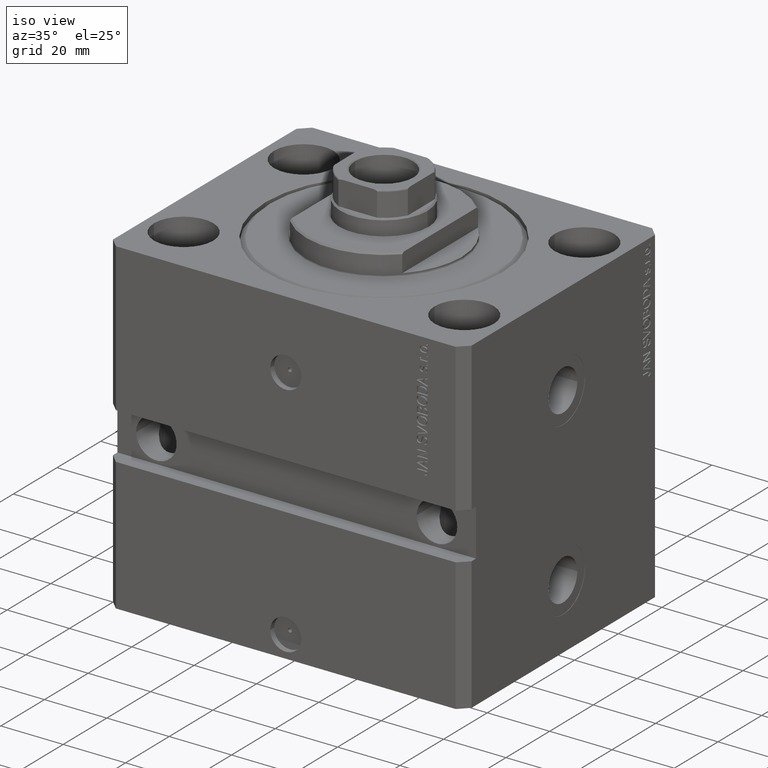
[diagram: clean part render]
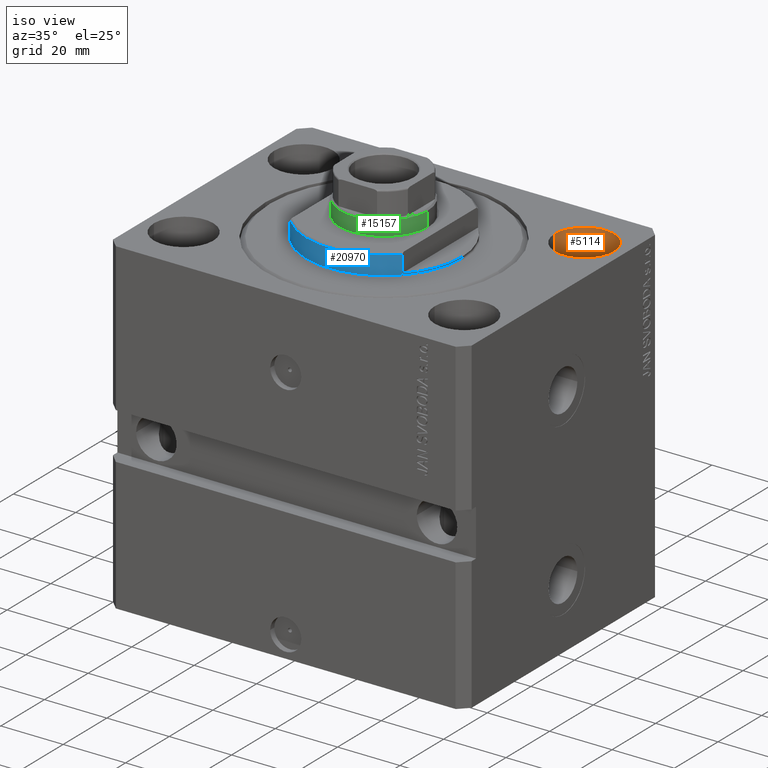
[diagram: same view with three faces highlighted in distinct colors, each labeled with its STEP entity id]
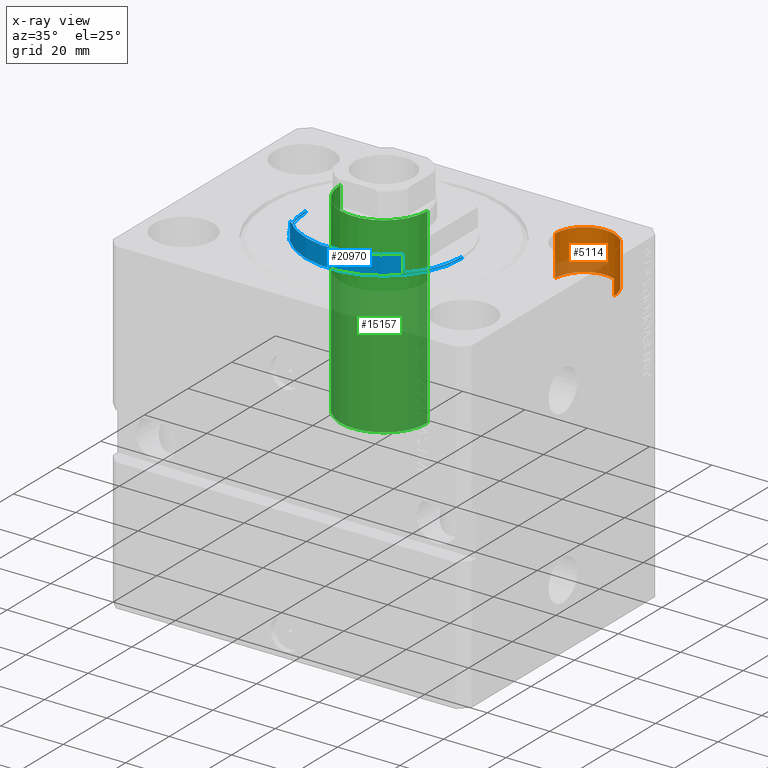
[diagram: x-ray of the same camera — body ghosted, the three highlighted faces saturated]
A machine part, iso view with three faces highlighted in distinct colors.
The next image is the same camera in x-ray (body ghosted, the three faces saturated) — at least one of them is partly hidden behind the body in this view.
Their STEP definitions:

[orange] entity #5114 — the highlighted cylindrical surface (edge-blend (fillet) strip) has radius 9.5 mm, axis along (0, 0, 1).
#1575 = CARTESIAN_POINT ( 'NONE',  ( 35.50000000000000000, 27.50000000000001776, 0.000000000000000000 ) ) ;
#2513 = EDGE_CURVE ( 'NONE', #15507, #37376, #39041, .T. ) ;
#5114 = ADVANCED_FACE ( 'NONE', ( #20858 ), #31531, .F. ) ;
#5474 = AXIS2_PLACEMENT_3D ( 'NONE', #42147, #35186, #14034 ) ;
#6503 = DIRECTION ( 'NONE',  ( -0.000000000000000000, -0.000000000000000000, 1.000000000000000000 ) ) ;
#6527 = VECTOR ( 'NONE', #6503, 1000.000000000000000 ) ;
#7341 = DIRECTION ( 'NONE',  ( -0.000000000000000000, -0.000000000000000000, 1.000000000000000000 ) ) ;
#13011 = DIRECTION ( 'NONE',  ( -0.000000000000000000, -0.000000000000000000, 1.000000000000000000 ) ) ;
#13107 = DIRECTION ( 'NONE',  ( 0.000000000000000000, 0.000000000000000000, 1.000000000000000000 ) ) ;
#14034 = DIRECTION ( 'NONE',  ( 1.000000000000000000, 0.000000000000000000, 0.000000000000000000 ) ) ;
#14112 = AXIS2_PLACEMENT_3D ( 'NONE', #16374, #13107, #38604 ) ;
#15507 = VERTEX_POINT ( 'NONE', #21456 ) ;
#16374 = CARTESIAN_POINT ( 'NONE',  ( 45.00000000000000000, 27.50000000000001776, 0.000000000000000000 ) ) ;
#16433 = VERTEX_POINT ( 'NONE', #24515 ) ;
#16744 = LINE ( 'NONE', #45297, #22772 ) ;
#17902 = EDGE_CURVE ( 'NONE', #16433, #30636, #16744, .T. ) ;
#18497 = AXIS2_PLACEMENT_3D ( 'NONE', #42211, #7341, #35482 ) ;
#20858 = FACE_OUTER_BOUND ( 'NONE', #24588, .T. ) ;
#21456 = CARTESIAN_POINT ( 'NONE',  ( 35.50000000000000000, 27.50000000000001776, -13.00000000000000000 ) ) ;
#22772 = VECTOR ( 'NONE', #13011, 1000.000000000000000 ) ;
#23860 = ORIENTED_EDGE ( 'NONE', *, *, #17902, .T. ) ;
#23967 = CARTESIAN_POINT ( 'NONE',  ( 35.50000000000000000, 27.50000000000001776, -13.00000000000000000 ) ) ;
#24289 = ORIENTED_EDGE ( 'NONE', *, *, #44002, .F. ) ;
#24515 = CARTESIAN_POINT ( 'NONE',  ( 54.50000000000000000, 27.50000000000001776, -13.00000000000000000 ) ) ;
#24588 = EDGE_LOOP ( 'NONE', ( #27254, #24289, #23860, #42805 ) ) ;
#24817 = CIRCLE ( 'NONE', #5474, 9.500000000000001776 ) ;
#27254 = ORIENTED_EDGE ( 'NONE', *, *, #2513, .F. ) ;
#30636 = VERTEX_POINT ( 'NONE', #30646 ) ;
#30646 = CARTESIAN_POINT ( 'NONE',  ( 54.50000000000000000, 27.50000000000001776, 0.000000000000000000 ) ) ;
#31211 = EDGE_CURVE ( 'NONE', #30636, #37376, #45253, .T. ) ;
#31531 = CYLINDRICAL_SURFACE ( 'NONE', #18497, 9.500000000000001776 ) ;
#35186 = DIRECTION ( 'NONE',  ( 0.000000000000000000, 0.000000000000000000, 1.000000000000000000 ) ) ;
#35482 = DIRECTION ( 'NONE',  ( 1.000000000000000000, 0.000000000000000000, 0.000000000000000000 ) ) ;
#37376 = VERTEX_POINT ( 'NONE', #1575 ) ;
#38604 = DIRECTION ( 'NONE',  ( 1.000000000000000000, 0.000000000000000000, 0.000000000000000000 ) ) ;
#39041 = LINE ( 'NONE', #23967, #6527 ) ;
#42147 = CARTESIAN_POINT ( 'NONE',  ( 45.00000000000000000, 27.50000000000001776, -13.00000000000000000 ) ) ;
#42211 = CARTESIAN_POINT ( 'NONE',  ( 45.00000000000000000, 27.50000000000001776, -13.00000000000000000 ) ) ;
#42805 = ORIENTED_EDGE ( 'NONE', *, *, #31211, .T. ) ;
#44002 = EDGE_CURVE ( 'NONE', #16433, #15507, #24817, .T. ) ;
#45253 = CIRCLE ( 'NONE', #14112, 9.500000000000001776 ) ;
#45297 = CARTESIAN_POINT ( 'NONE',  ( 54.50000000000000000, 27.50000000000001776, -13.00000000000000000 ) ) ;

[blue] entity #20970 — the highlighted cylindrical surface (partial cylindrical patch) has radius 25 mm, axis along (0, 0, -1).
#253 = VECTOR ( 'NONE', #33514, 1000.000000000000000 ) ;
#567 = EDGE_CURVE ( 'NONE', #45262, #15903, #36196, .T. ) ;
#1098 = CIRCLE ( 'NONE', #11498, 25.00000000000000000 ) ;
#1175 = DIRECTION ( 'NONE',  ( 1.000000000000000000, 0.000000000000000000, 0.000000000000000000 ) ) ;
#1497 = EDGE_LOOP ( 'NONE', ( #18070, #38552, #6539, #43026, #7379, #21138, #28132, #10386 ) ) ;
#3947 = DIRECTION ( 'NONE',  ( -0.000000000000000000, -0.000000000000000000, 1.000000000000000000 ) ) ;
#4642 = FACE_OUTER_BOUND ( 'NONE', #1497, .T. ) ;
#4787 = CIRCLE ( 'NONE', #9226, 25.00000000000000000 ) ;
#5246 = CARTESIAN_POINT ( 'NONE',  ( -18.00000000000000000, -17.34935157289747920, -6.499999999999969802 ) ) ;
#5684 = EDGE_CURVE ( 'NONE', #40371, #35681, #16380, .T. ) ;
#6539 = ORIENTED_EDGE ( 'NONE', *, *, #7253, .T. ) ;
#6623 = VERTEX_POINT ( 'NONE', #18639 ) ;
#7253 = EDGE_CURVE ( 'NONE', #40371, #34630, #17558, .T. ) ;
#7379 = ORIENTED_EDGE ( 'NONE', *, *, #11407, .F. ) ;
#7624 = DIRECTION ( 'NONE',  ( -1.000000000000000000, 0.000000000000000000, 0.000000000000000000 ) ) ;
#9144 = EDGE_CURVE ( 'NONE', #34630, #17055, #1098, .T. ) ;
#9226 = AXIS2_PLACEMENT_3D ( 'NONE', #11499, #45897, #17809 ) ;
#10386 = ORIENTED_EDGE ( 'NONE', *, *, #45340, .T. ) ;
#10657 = VECTOR ( 'NONE', #37832, 1000.000000000000000 ) ;
#11407 = EDGE_CURVE ( 'NONE', #6623, #17055, #22737, .T. ) ;
#11498 = AXIS2_PLACEMENT_3D ( 'NONE', #37534, #22930, #12673 ) ;
#11499 = CARTESIAN_POINT ( 'NONE',  ( 0.000000000000000000, 0.000000000000000000, -0.4999999999999995559 ) ) ;
#12673 = DIRECTION ( 'NONE',  ( -1.000000000000000000, 0.000000000000000000, 0.000000000000000000 ) ) ;
#14341 = CARTESIAN_POINT ( 'NONE',  ( -25.00000000000000000, 3.061616997868383043E-15, -0.4999999999999995559 ) ) ;
#14514 = CARTESIAN_POINT ( 'NONE',  ( -18.00000000000000000, -17.34935157289747920, -7.000000000000000000 ) ) ;
#15178 = LINE ( 'NONE', #19126, #253 ) ;
#15357 = CARTESIAN_POINT ( 'NONE',  ( 0.000000000000000000, 0.000000000000000000, -7.000000000000000000 ) ) ;
#15903 = VERTEX_POINT ( 'NONE', #37163 ) ;
#16380 = CIRCLE ( 'NONE', #42337, 25.00000000000000000 ) ;
#17055 = VERTEX_POINT ( 'NONE', #28339 ) ;
#17558 = LINE ( 'NONE', #14514, #10657 ) ;
#17809 = DIRECTION ( 'NONE',  ( 1.000000000000000000, 0.000000000000000000, 0.000000000000000000 ) ) ;
#18070 = ORIENTED_EDGE ( 'NONE', *, *, #41780, .F. ) ;
#18340 = CARTESIAN_POINT ( 'NONE',  ( 0.000000000000000000, 0.000000000000000000, -1.000000000000000000 ) ) ;
#18414 = AXIS2_PLACEMENT_3D ( 'NONE', #15357, #3947, #1175 ) ;
#18639 = CARTESIAN_POINT ( 'NONE',  ( 18.00000000000000000, -17.34935157289747920, -1.000000000000000000 ) ) ;
#18844 = CYLINDRICAL_SURFACE ( 'NONE', #18414, 25.00000000000000000 ) ;
#19126 = CARTESIAN_POINT ( 'NONE',  ( -25.00000000000000000, 3.061616997868383043E-15, -7.000000000000000000 ) ) ;
#20970 = ADVANCED_FACE ( 'NONE', ( #4642 ), #18844, .T. ) ;
#21138 = ORIENTED_EDGE ( 'NONE', *, *, #44670, .F. ) ;
#22628 = AXIS2_PLACEMENT_3D ( 'NONE', #18340, #24633, #7624 ) ;
#22737 = LINE ( 'NONE', #29693, #43484 ) ;
#22930 = DIRECTION ( 'NONE',  ( 0.000000000000000000, 0.000000000000000000, 1.000000000000000000 ) ) ;
#23350 = CIRCLE ( 'NONE', #22628, 25.00000000000000000 ) ;
#24426 = CARTESIAN_POINT ( 'NONE',  ( -18.00000000000000000, -17.34935157289747920, -1.000000000000000000 ) ) ;
#24633 = DIRECTION ( 'NONE',  ( 0.000000000000000000, 0.000000000000000000, -1.000000000000000000 ) ) ;
#26893 = DIRECTION ( 'NONE',  ( 0.000000000000000000, 0.000000000000000000, -1.000000000000000000 ) ) ;
#28132 = ORIENTED_EDGE ( 'NONE', *, *, #567, .T. ) ;
#28339 = CARTESIAN_POINT ( 'NONE',  ( 18.00000000000000000, -17.34935157289747920, -6.499999999999971578 ) ) ;
#29226 = CARTESIAN_POINT ( 'NONE',  ( 25.00000000000000000, 0.000000000000000000, -7.000000000000000000 ) ) ;
#29684 = DIRECTION ( 'NONE',  ( -0.000000000000000000, -0.000000000000000000, 1.000000000000000000 ) ) ;
#29693 = CARTESIAN_POINT ( 'NONE',  ( 18.00000000000000000, -17.34935157289747920, -7.000000000000000000 ) ) ;
#29824 = DIRECTION ( 'NONE',  ( -1.000000000000000000, 0.000000000000000000, 0.000000000000000000 ) ) ;
#30381 = CARTESIAN_POINT ( 'NONE',  ( -25.00000000000000000, 3.061616997868383043E-15, -1.000000000000000000 ) ) ;
#33514 = DIRECTION ( 'NONE',  ( -0.000000000000000000, -0.000000000000000000, 1.000000000000000000 ) ) ;
#34216 = DIRECTION ( 'NONE',  ( 0.000000000000000000, 0.000000000000000000, -1.000000000000000000 ) ) ;
#34589 = VERTEX_POINT ( 'NONE', #14341 ) ;
#34630 = VERTEX_POINT ( 'NONE', #5246 ) ;
#35681 = VERTEX_POINT ( 'NONE', #30381 ) ;
#36196 = LINE ( 'NONE', #29226, #36201 ) ;
#36201 = VECTOR ( 'NONE', #29684, 1000.000000000000000 ) ;
#37163 = CARTESIAN_POINT ( 'NONE',  ( 25.00000000000000000, 0.000000000000000000, -0.4999999999999995559 ) ) ;
#37534 = CARTESIAN_POINT ( 'NONE',  ( 0.000000000000000000, 0.000000000000000000, -6.499999999999971578 ) ) ;
#37832 = DIRECTION ( 'NONE',  ( 0.000000000000000000, 0.000000000000000000, -1.000000000000000000 ) ) ;
#38254 = CARTESIAN_POINT ( 'NONE',  ( 25.00000000000000000, 0.000000000000000000, -1.000000000000000000 ) ) ;
#38552 = ORIENTED_EDGE ( 'NONE', *, *, #5684, .F. ) ;
#40371 = VERTEX_POINT ( 'NONE', #24426 ) ;
#40961 = CARTESIAN_POINT ( 'NONE',  ( 0.000000000000000000, 0.000000000000000000, -1.000000000000000000 ) ) ;
#41780 = EDGE_CURVE ( 'NONE', #35681, #34589, #15178, .T. ) ;
#42337 = AXIS2_PLACEMENT_3D ( 'NONE', #40961, #34216, #29824 ) ;
#43026 = ORIENTED_EDGE ( 'NONE', *, *, #9144, .T. ) ;
#43484 = VECTOR ( 'NONE', #26893, 1000.000000000000000 ) ;
#44670 = EDGE_CURVE ( 'NONE', #45262, #6623, #23350, .T. ) ;
#45262 = VERTEX_POINT ( 'NONE', #38254 ) ;
#45340 = EDGE_CURVE ( 'NONE', #15903, #34589, #4787, .T. ) ;
#45897 = DIRECTION ( 'NONE',  ( -0.000000000000000000, -0.000000000000000000, -1.000000000000000000 ) ) ;

[green] entity #15157 — the highlighted cylindrical surface (partial cylindrical patch) has radius 14 mm, axis along (-0, -0, -1).
#404 = CARTESIAN_POINT ( 'NONE',  ( 14.00000000000000000, 1.714505518806294638E-15, 37.00000000000000000 ) ) ;
#950 = DIRECTION ( 'NONE',  ( -0.000000000000000000, -0.000000000000000000, -1.000000000000000000 ) ) ;
#1958 = EDGE_CURVE ( 'NONE', #29801, #40538, #23609, .T. ) ;
#2001 = CARTESIAN_POINT ( 'NONE',  ( 0.000000000000000000, 0.000000000000000000, 99.00000000000000000 ) ) ;
#3188 = AXIS2_PLACEMENT_3D ( 'NONE', #25775, #14841, #29475 ) ;
#4917 = VERTEX_POINT ( 'NONE', #15310 ) ;
#5303 = VECTOR ( 'NONE', #950, 1000.000000000000000 ) ;
#9870 = DIRECTION ( 'NONE',  ( -1.000000000000000000, 0.000000000000000000, 0.000000000000000000 ) ) ;
#11168 = CARTESIAN_POINT ( 'NONE',  ( 14.00000000000000000, 1.714505518806294638E-15, 99.00000000000000000 ) ) ;
#11390 = CIRCLE ( 'NONE', #3188, 14.00000000000000000 ) ;
#13588 = LINE ( 'NONE', #38917, #38530 ) ;
#14841 = DIRECTION ( 'NONE',  ( 0.000000000000000000, 0.000000000000000000, 1.000000000000000000 ) ) ;
#15157 = ADVANCED_FACE ( 'NONE', ( #26876 ), #30130, .T. ) ;
#15310 = CARTESIAN_POINT ( 'NONE',  ( -14.00000000000000000, 0.000000000000000000, 37.00000000000000000 ) ) ;
#15739 = ORIENTED_EDGE ( 'NONE', *, *, #1958, .T. ) ;
#16407 = CARTESIAN_POINT ( 'NONE',  ( 0.000000000000000000, 0.000000000000000000, 98.50000000000000000 ) ) ;
#17562 = DIRECTION ( 'NONE',  ( 1.000000000000000000, 0.000000000000000000, 0.000000000000000000 ) ) ;
#18768 = CARTESIAN_POINT ( 'NONE',  ( -14.00000000000000000, 0.000000000000000000, 98.50000000000000000 ) ) ;
#20476 = ORIENTED_EDGE ( 'NONE', *, *, #35968, .F. ) ;
#20578 = DIRECTION ( 'NONE',  ( -0.000000000000000000, -0.000000000000000000, -1.000000000000000000 ) ) ;
#23609 = CIRCLE ( 'NONE', #45105, 14.00000000000000000 ) ;
#25337 = EDGE_CURVE ( 'NONE', #40538, #4917, #13588, .T. ) ;
#25577 = CARTESIAN_POINT ( 'NONE',  ( 14.00000000000000000, 1.714505518806294638E-15, 98.50000000000000000 ) ) ;
#25775 = CARTESIAN_POINT ( 'NONE',  ( 0.000000000000000000, 0.000000000000000000, 37.00000000000000000 ) ) ;
#26876 = FACE_OUTER_BOUND ( 'NONE', #39999, .T. ) ;
#27072 = LINE ( 'NONE', #11168, #5303 ) ;
#29475 = DIRECTION ( 'NONE',  ( 1.000000000000000000, 0.000000000000000000, 0.000000000000000000 ) ) ;
#29801 = VERTEX_POINT ( 'NONE', #25577 ) ;
#30130 = CYLINDRICAL_SURFACE ( 'NONE', #33071, 14.00000000000000000 ) ;
#30577 = DIRECTION ( 'NONE',  ( 0.000000000000000000, 0.000000000000000000, -1.000000000000000000 ) ) ;
#33071 = AXIS2_PLACEMENT_3D ( 'NONE', #2001, #45202, #9870 ) ;
#33079 = ORIENTED_EDGE ( 'NONE', *, *, #37427, .T. ) ;
#33661 = VERTEX_POINT ( 'NONE', #404 ) ;
#33720 = ORIENTED_EDGE ( 'NONE', *, *, #25337, .T. ) ;
#35968 = EDGE_CURVE ( 'NONE', #29801, #33661, #27072, .T. ) ;
#37427 = EDGE_CURVE ( 'NONE', #4917, #33661, #11390, .T. ) ;
#38530 = VECTOR ( 'NONE', #20578, 1000.000000000000000 ) ;
#38917 = CARTESIAN_POINT ( 'NONE',  ( -14.00000000000000000, 0.000000000000000000, 99.00000000000000000 ) ) ;
#39999 = EDGE_LOOP ( 'NONE', ( #20476, #15739, #33720, #33079 ) ) ;
#40538 = VERTEX_POINT ( 'NONE', #18768 ) ;
#45105 = AXIS2_PLACEMENT_3D ( 'NONE', #16407, #30577, #17562 ) ;
#45202 = DIRECTION ( 'NONE',  ( -0.000000000000000000, -0.000000000000000000, -1.000000000000000000 ) ) ;